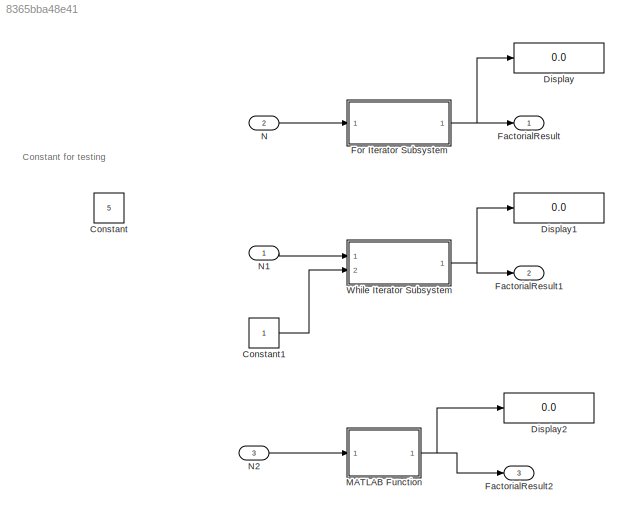
MODEL slx_8365bba48e41
KIND model
CONFIG AbsTol = auto
CONFIG EnableMultiTasking = off
CONFIG FixedStep = auto
CONFIG MaxStep = auto
CONFIG MinStep = auto
CONFIG RelTol = 1e-3
CONFIG SampleTimeConstraint = Unconstrained
CONFIG SolverName = FixedStepDiscrete
CONFIG StartTime = 0.0
CONFIG StopTime = 10
BLOCK [Constant] Constant
  Value = 5
BLOCK [Constant] Constant1
BLOCK [Display] Display
  Decimation = 1
  Ports = [1]
BLOCK [Display] Display1
  Decimation = 1
  Ports = [1]
BLOCK [Display] Display2
  Decimation = 1
  Ports = [1]
BLOCK [Outport] FactorialResult
BLOCK [Outport] FactorialResult1
  Port = 2
BLOCK [Outport] FactorialResult2
  Port = 3
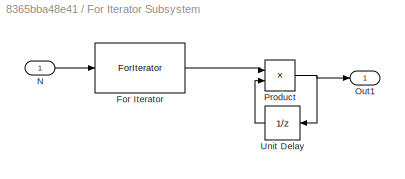
BLOCK [SubSystem] For Iterator Subsystem
  Ports = [1, 1]
  RequestExecContextInheritance = off
  TreatAsAtomicUnit = on
BLOCK [ForIterator] For Iterator Subsystem/For Iterator
  IterationSource = external
  Ports = [1, 1]
  ResetStates = reset
BLOCK [Inport] For Iterator Subsystem/N
BLOCK [Outport] For Iterator Subsystem/Out1
BLOCK [Product] For Iterator Subsystem/Product
  OutDataTypeStr = uint32
  Ports = [2, 1]
BLOCK [UnitDelay] For Iterator Subsystem/Unit Delay
  HasFrameUpgradeWarning = on
  InitialCondition = 1
  SampleTime = -1
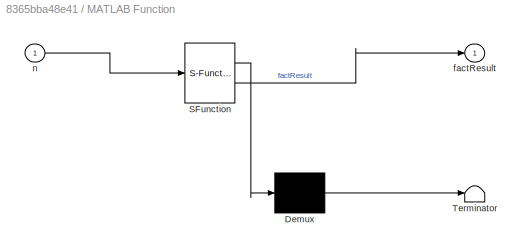
BLOCK [SubSystem] MATLAB Function
  ErrorFcn = Stateflow.Translate.translate
  PermitHierarchicalResolution = ExplicitOnly
  Ports = [1, 1]
  RequestExecContextInheritance = off
  SFBlockType = MATLAB Function
  TreatAsAtomicUnit = on
BLOCK [Demux] MATLAB Function/ Demux 
  Outputs = 1
  Ports = [1, 1]
BLOCK [S-Function] MATLAB Function/ SFunction 
  EnableBusSupport = on
  FunctionName = sf_sfun
  PortCounts = [1 2]
  Ports = [1, 2]
  SFcnIsStateOwnerBlock = off
  SFunctionDeploymentMode = off
  Tag = Stateflow S-Function 2
BLOCK [Terminator] MATLAB Function/ Terminator 
BLOCK [Outport] MATLAB Function/factResult
BLOCK [Inport] MATLAB Function/n
BLOCK [Inport] N
  Port = 2
BLOCK [Inport] N1
BLOCK [Inport] N2
  Port = 3
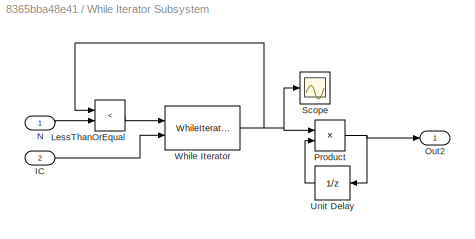
BLOCK [SubSystem] While Iterator Subsystem
  Ports = [2, 1]
  RequestExecContextInheritance = off
  TreatAsAtomicUnit = on
BLOCK [Inport] While Iterator Subsystem/IC
  Port = 2
BLOCK [RelationalOperator] While Iterator Subsystem/LessThanOrEqual
  InputSameDT = off
  Operator = <
  OutDataTypeStr = boolean
  Ports = [2, 1]
  RndMeth = Simplest
BLOCK [Inport] While Iterator Subsystem/N
BLOCK [Outport] While Iterator Subsystem/Out2
BLOCK [Product] While Iterator Subsystem/Product
  OutDataTypeStr = uint32
  Ports = [2, 1]
BLOCK [Scope] While Iterator Subsystem/Scope
  Floating = off
  NumInputPorts = 1
  Ports = [1]
  ScopeSpecificationString = Simulink.scopes.TimeScopeBlockCfg('CurrentConfiguration', extmgr.ConfigurationSet(extmgr.Configuration('Core','General UI',true),extmgr.Configuration('Core','Source UI',true),extmgr.Configuration('Sources','WiredSimulink',true),extmgr.Configuration('Visuals','Time Domain',true,'SerializedDisplays',{struct('MinYLimReal','0.9','MaxYLimReal','1.1','YLabelReal','','MinYLimMag','0.9','MaxYLimMag','1.1'...<+1300ch>
BLOCK [UnitDelay] While Iterator Subsystem/Unit Delay
  HasFrameUpgradeWarning = on
  InitialCondition = 1
  SampleTime = -1
BLOCK [WhileIterator] While Iterator Subsystem/While Iterator
  MaxIters = -1
  Ports = [2, 1]
  ResetStates = reset
  ShowIterationPort = on
ANNOTATION (root): Constant for testing
LINE Constant1:1 -> While Iterator Subsystem:2
LINE For Iterator Subsystem/For Iterator:1 -> For Iterator Subsystem/Product:1
LINE For Iterator Subsystem/N:1 -> For Iterator Subsystem/For Iterator:1
NET For Iterator Subsystem/Product:1 -> For Iterator Subsystem/Out1:1, For Iterator Subsystem/Unit Delay:1
LINE For Iterator Subsystem/Unit Delay:1 -> For Iterator Subsystem/Product:2
NET For Iterator Subsystem:1 -> Display:1, FactorialResult:1
NET MATLAB Function:1 -> Display2:1, FactorialResult2:1
LINE N1:1 -> While Iterator Subsystem:1
LINE N2:1 -> MATLAB Function:1
LINE N:1 -> For Iterator Subsystem:1
LINE While Iterator Subsystem/IC:1 -> While Iterator Subsystem/While Iterator:2
LINE While Iterator Subsystem/LessThanOrEqual:1 -> While Iterator Subsystem/While Iterator:1
LINE While Iterator Subsystem/N:1 -> While Iterator Subsystem/LessThanOrEqual:2
NET While Iterator Subsystem/Product:1 -> While Iterator Subsystem/Out2:1, While Iterator Subsystem/Unit Delay:1
LINE While Iterator Subsystem/Unit Delay:1 -> While Iterator Subsystem/Product:2
NET While Iterator Subsystem/While Iterator:1 -> While Iterator Subsystem/LessThanOrEqual:1, While Iterator Subsystem/Product:1, While Iterator Subsystem/Scope:1
NET While Iterator Subsystem:1 -> Display1:1, FactorialResult1:1
note: NET lines group one-source signal fan-out (src -> all destinations, sorted); 1:1 wires keep LINE
CHART MATLAB Function states=1 transitions=1
  STATE_LABEL 'eML_blk_kernel()'
  STATE_LABEL 'SCRIPT:\nfunction factResult = fcn(n)\n\nfactResult = factorial(n);\n'
CHART  states=0 transitions=0
